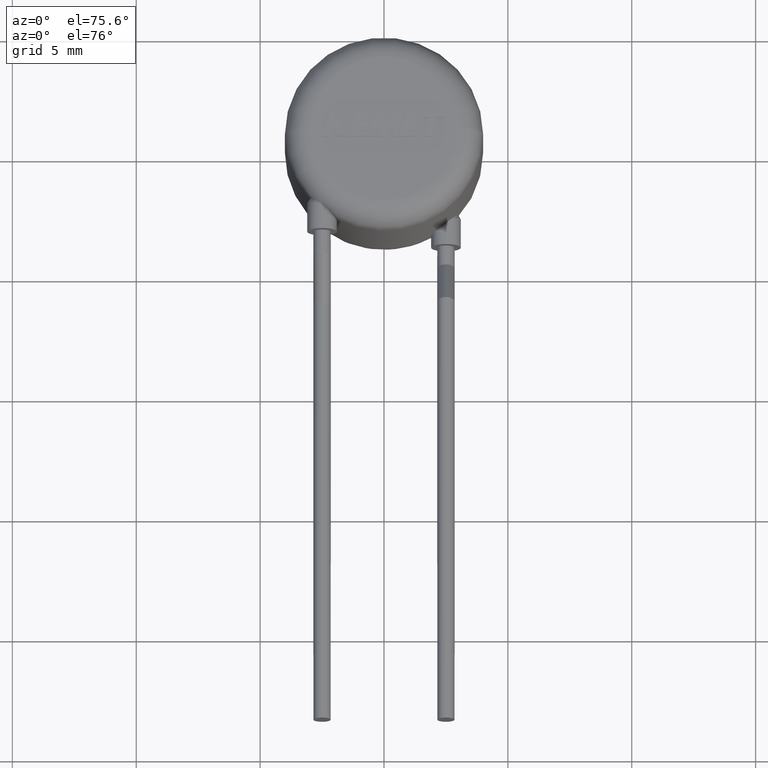
[diagram: clean part render]
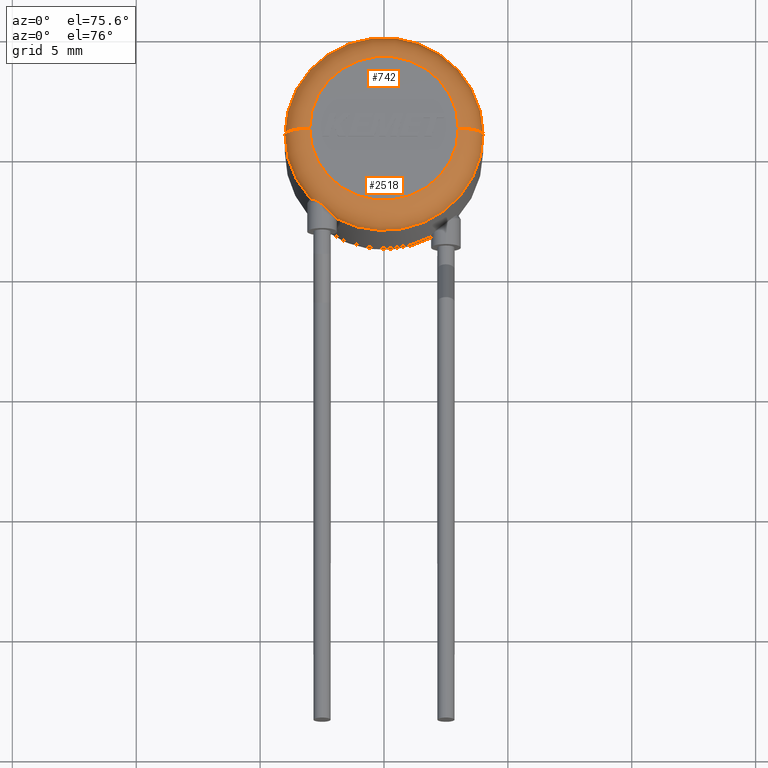
[diagram: same view with one multi-face feature highlighted, each face labeled with its STEP entity id]
A machine part, auxiliary view. The highlighted faces form ONE feature: a constant-radius fillet chain: 2 tangent blend faces with common blend radius 1 mm. The faces share edges in the B-rep.
Their STEP definitions:
[1] entity #2518 (Torus):
#25 = CARTESIAN_POINT ( 'NONE',  ( -2.527078140111358451, -2.992499789388508802, 4.399388667166896916 ) ) ;
#32 = VERTEX_POINT ( 'NONE', #2032 ) ;
#74 = DIRECTION ( 'NONE',  ( 0.000000000000000000, 0.000000000000000000, -1.000000000000000000 ) ) ;
#78 = CARTESIAN_POINT ( 'NONE',  ( 0.000000000000000000, 0.000000000000000000, 4.000000000000000000 ) ) ;
#98 = AXIS2_PLACEMENT_3D ( 'NONE', #78, #958, #3031 ) ;
#107 = CIRCLE ( 'NONE', #287, 1.000000000000000000 ) ;
#224 = CIRCLE ( 'NONE', #98, 4.000000000000000000 ) ;
#225 = CIRCLE ( 'NONE', #2133, 3.000000000000000000 ) ;
#248 = CARTESIAN_POINT ( 'NONE',  ( -2.717019160498452823, -2.852901837493643900, 4.352803223729541315 ) ) ;
#287 = AXIS2_PLACEMENT_3D ( 'NONE', #1619, #690, #74 ) ;
#290 = CARTESIAN_POINT ( 'NONE',  ( -4.000000000000000000, 0.000000000000000000, 4.000000000000000000 ) ) ;
#330 = CARTESIAN_POINT ( 'NONE',  ( -2.499999999999994671, -3.014811906893561044, 4.400000000000000355 ) ) ;
#381 = CARTESIAN_POINT ( 'NONE',  ( -3.000000000000000000, 3.673940397442059868E-16, 4.000000000000000000 ) ) ;
#470 = DIRECTION ( 'NONE',  ( 1.000000000000000000, 0.000000000000000000, 0.000000000000000000 ) ) ;
#483 = EDGE_CURVE ( 'NONE', #3106, #1262, #225, .T. ) ;
#489 = VERTEX_POINT ( 'NONE', #290 ) ;
#544 = CIRCLE ( 'NONE', #728, 4.000000000000000000 ) ;
#548 = VERTEX_POINT ( 'NONE', #2449 ) ;
#551 = VERTEX_POINT ( 'NONE', #2737 ) ;
#574 = FACE_OUTER_BOUND ( 'NONE', #1790, .T. ) ;
#629 = DIRECTION ( 'NONE',  ( 1.000000000000000000, 0.000000000000000000, 0.000000000000000000 ) ) ;
#640 = B_SPLINE_CURVE_WITH_KNOTS ( 'NONE', 3,
 ( #1755, #889, #3201, #248, #2633, #1435 ),
 .UNSPECIFIED., .F., .F.,
 ( 4, 2, 4 ),
 ( 2.101183750915074968E-07, 0.0003550189271266756923, 0.0007098277358782598091 ),
 .UNSPECIFIED. ) ;
#672 = TOROIDAL_SURFACE ( 'NONE', #2841, 3.000000000000000000, 1.000000000000000000 ) ;
#690 = DIRECTION ( 'NONE',  ( 0.000000000000000000, -1.000000000000000000, 0.000000000000000000 ) ) ;
#728 = AXIS2_PLACEMENT_3D ( 'NONE', #2466, #919, #629 ) ;
#889 = CARTESIAN_POINT ( 'NONE',  ( -2.940507723932025641, -2.712037098872684737, 4.112564265155002730 ) ) ;
#907 = CARTESIAN_POINT ( 'NONE',  ( -2.509027553551944845, -3.007325906248430325, 4.400000000000000355 ) ) ;
#919 = DIRECTION ( 'NONE',  ( -0.000000000000000000, -0.000000000000000000, -1.000000000000000000 ) ) ;
#938 = ORIENTED_EDGE ( 'NONE', *, *, #2244, .F. ) ;
#958 = DIRECTION ( 'NONE',  ( -0.000000000000000000, -0.000000000000000000, -1.000000000000000000 ) ) ;
#1134 = CARTESIAN_POINT ( 'NONE',  ( -2.078338075695280729, -3.387766412183667697, 4.231825303328415444 ) ) ;
#1169 = DIRECTION ( 'NONE',  ( 0.000000000000000000, 0.000000000000000000, 1.000000000000000000 ) ) ;
#1173 = EDGE_CURVE ( 'NONE', #548, #489, #224, .T. ) ;
#1219 = ORIENTED_EDGE ( 'NONE', *, *, #1173, .F. ) ;
#1259 = B_SPLINE_CURVE_WITH_KNOTS ( 'NONE', 3,
 ( #1992, #2898, #1440, #2620, #1134, #3842, #2307, #3501 ),
 .UNSPECIFIED., .F., .F.,
 ( 4, 2, 2, 4 ),
 ( 0.0002970482918024581792, 0.0007406443044126395647, 0.0009624423107177303930, 0.001184240317022821004 ),
 .UNSPECIFIED. ) ;
#1262 = VERTEX_POINT ( 'NONE', #3796 ) ;
#1296 = ORIENTED_EDGE ( 'NONE', *, *, #1765, .T. ) ;
#1378 = ORIENTED_EDGE ( 'NONE', *, *, #2199, .T. ) ;
#1421 = VERTEX_POINT ( 'NONE', #2576 ) ;
#1431 = ORIENTED_EDGE ( 'NONE', *, *, #3733, .F. ) ;
#1435 = CARTESIAN_POINT ( 'NONE',  ( -2.527078140111358451, -2.992499789388508802, 4.399388667166896916 ) ) ;
#1440 = CARTESIAN_POINT ( 'NONE',  ( -2.274436543625788509, -3.210265209407457743, 4.368342571789148643 ) ) ;
#1500 = CARTESIAN_POINT ( 'NONE',  ( 0.000000000000000000, 0.000000000000000000, 4.000000000000000000 ) ) ;
#1511 = DIRECTION ( 'NONE',  ( 1.000000000000000000, 0.000000000000000000, 0.000000000000000000 ) ) ;
#1584 = B_SPLINE_CURVE_WITH_KNOTS ( 'NONE', 3,
 ( #25, #3577, #907, #330 ),
 .UNSPECIFIED., .F., .F.,
 ( 4, 4 ),
 ( 0.0002622835256613002776, 0.0002970482918024581792 ),
 .UNSPECIFIED. ) ;
#1619 = CARTESIAN_POINT ( 'NONE',  ( 3.000000000000000000, 0.000000000000000000, 4.000000000000000000 ) ) ;
#1664 = CARTESIAN_POINT ( 'NONE',  ( -1.934314575050761764, -3.501203667989937873, 3.999999999999999112 ) ) ;
#1697 = EDGE_CURVE ( 'NONE', #1421, #1262, #107, .T. ) ;
#1755 = CARTESIAN_POINT ( 'NONE',  ( -2.968394557020705538, -2.681162761536466377, 4.000000000000000000 ) ) ;
#1765 = EDGE_CURVE ( 'NONE', #548, #32, #640, .T. ) ;
#1790 = EDGE_LOOP ( 'NONE', ( #1431, #1219, #1296, #3477, #1378, #938, #2404, #3227 ) ) ;
#1992 = CARTESIAN_POINT ( 'NONE',  ( -2.499999999999994671, -3.014811906893561044, 4.400000000000000355 ) ) ;
#2032 = CARTESIAN_POINT ( 'NONE',  ( -2.527078140111358451, -2.992499789388508802, 4.399388667166896916 ) ) ;
#2133 = AXIS2_PLACEMENT_3D ( 'NONE', #2962, #1169, #1511 ) ;
#2153 = EDGE_CURVE ( 'NONE', #32, #551, #1584, .T. ) ;
#2175 = DIRECTION ( 'NONE',  ( 1.224646799147353207E-16, 1.000000000000000000, -0.000000000000000000 ) ) ;
#2199 = EDGE_CURVE ( 'NONE', #551, #3246, #1259, .T. ) ;
#2244 = EDGE_CURVE ( 'NONE', #1421, #3246, #544, .T. ) ;
#2290 = CARTESIAN_POINT ( 'NONE',  ( -3.000000000000000000, 4.286263797015736595E-16, 5.000000000000000000 ) ) ;
#2307 = CARTESIAN_POINT ( 'NONE',  ( -1.959039132056454857, -3.487544059615437231, 4.069931607729101231 ) ) ;
#2335 = CIRCLE ( 'NONE', #2452, 1.000000000000000000 ) ;
#2404 = ORIENTED_EDGE ( 'NONE', *, *, #1697, .T. ) ;
#2449 = CARTESIAN_POINT ( 'NONE',  ( -2.968394557020705538, -2.681162761536466377, 4.000000000000000000 ) ) ;
#2452 = AXIS2_PLACEMENT_3D ( 'NONE', #381, #2175, #2765 ) ;
#2466 = CARTESIAN_POINT ( 'NONE',  ( 0.000000000000000000, 0.000000000000000000, 4.000000000000000000 ) ) ;
#2477 = DIRECTION ( 'NONE',  ( 0.000000000000000000, 0.000000000000000000, 1.000000000000000000 ) ) ;
#2518 = ADVANCED_FACE ( 'NONE', ( #574 ), #672, .T. ) ;
#2576 = CARTESIAN_POINT ( 'NONE',  ( 4.000000000000000000, 4.898587196589412829E-16, 4.000000000000000000 ) ) ;
#2620 = CARTESIAN_POINT ( 'NONE',  ( -2.125761128645033526, -3.344908790718627678, 4.272671455777486749 ) ) ;
#2633 = CARTESIAN_POINT ( 'NONE',  ( -2.618841413233221616, -2.918022369046867404, 4.394102833225137061 ) ) ;
#2737 = CARTESIAN_POINT ( 'NONE',  ( -2.499999999999994671, -3.014811906893561044, 4.400000000000000355 ) ) ;
#2765 = DIRECTION ( 'NONE',  ( -1.000000000000000000, 1.224646799147352961E-16, 0.000000000000000000 ) ) ;
#2841 = AXIS2_PLACEMENT_3D ( 'NONE', #1500, #2477, #470 ) ;
#2898 = CARTESIAN_POINT ( 'NONE',  ( -2.384809040768006483, -3.110332757604485465, 4.399999999999997691 ) ) ;
#2962 = CARTESIAN_POINT ( 'NONE',  ( 0.000000000000000000, 0.000000000000000000, 5.000000000000000000 ) ) ;
#3031 = DIRECTION ( 'NONE',  ( 1.000000000000000000, 1.776356839400250465E-15, 0.000000000000000000 ) ) ;
#3106 = VERTEX_POINT ( 'NONE', #2290 ) ;
#3201 = CARTESIAN_POINT ( 'NONE',  ( -2.878306807413743229, -2.750632553528877811, 4.211321216219925390 ) ) ;
#3227 = ORIENTED_EDGE ( 'NONE', *, *, #483, .F. ) ;
#3246 = VERTEX_POINT ( 'NONE', #1664 ) ;
#3477 = ORIENTED_EDGE ( 'NONE', *, *, #2153, .T. ) ;
#3501 = CARTESIAN_POINT ( 'NONE',  ( -1.934314575050761764, -3.501203667989937873, 3.999999999999999112 ) ) ;
#3577 = CARTESIAN_POINT ( 'NONE',  ( -2.518053496787102663, -2.999888366311728838, 4.399796366827899874 ) ) ;
#3733 = EDGE_CURVE ( 'NONE', #489, #3106, #2335, .T. ) ;
#3796 = CARTESIAN_POINT ( 'NONE',  ( 3.000000000000000000, 0.000000000000000000, 5.000000000000000000 ) ) ;
#3842 = CARTESIAN_POINT ( 'NONE',  ( -1.995251453810879427, -3.458857795145789282, 4.130909014871167351 ) ) ;
[2] entity #742 (Torus):
#6 = DIRECTION ( 'NONE',  ( -0.000000000000000000, -0.000000000000000000, -1.000000000000000000 ) ) ;
#74 = DIRECTION ( 'NONE',  ( 0.000000000000000000, 0.000000000000000000, -1.000000000000000000 ) ) ;
#107 = CIRCLE ( 'NONE', #287, 1.000000000000000000 ) ;
#155 = AXIS2_PLACEMENT_3D ( 'NONE', #1055, #2595, #3466 ) ;
#209 = CARTESIAN_POINT ( 'NONE',  ( 0.000000000000000000, 0.000000000000000000, 4.000000000000000000 ) ) ;
#287 = AXIS2_PLACEMENT_3D ( 'NONE', #1619, #690, #74 ) ;
#290 = CARTESIAN_POINT ( 'NONE',  ( -4.000000000000000000, 0.000000000000000000, 4.000000000000000000 ) ) ;
#381 = CARTESIAN_POINT ( 'NONE',  ( -3.000000000000000000, 3.673940397442059868E-16, 4.000000000000000000 ) ) ;
#394 = EDGE_CURVE ( 'NONE', #489, #1421, #2705, .T. ) ;
#489 = VERTEX_POINT ( 'NONE', #290 ) ;
#690 = DIRECTION ( 'NONE',  ( 0.000000000000000000, -1.000000000000000000, 0.000000000000000000 ) ) ;
#724 = CIRCLE ( 'NONE', #2523, 3.000000000000000000 ) ;
#742 = ADVANCED_FACE ( 'NONE', ( #2776 ), #1895, .T. ) ;
#860 = DIRECTION ( 'NONE',  ( 0.000000000000000000, 0.000000000000000000, 1.000000000000000000 ) ) ;
#1055 = CARTESIAN_POINT ( 'NONE',  ( 0.000000000000000000, 0.000000000000000000, 4.000000000000000000 ) ) ;
#1207 = ORIENTED_EDGE ( 'NONE', *, *, #394, .F. ) ;
#1262 = VERTEX_POINT ( 'NONE', #3796 ) ;
#1421 = VERTEX_POINT ( 'NONE', #2576 ) ;
#1619 = CARTESIAN_POINT ( 'NONE',  ( 3.000000000000000000, 0.000000000000000000, 4.000000000000000000 ) ) ;
#1697 = EDGE_CURVE ( 'NONE', #1421, #1262, #107, .T. ) ;
#1808 = ORIENTED_EDGE ( 'NONE', *, *, #3733, .T. ) ;
#1895 = TOROIDAL_SURFACE ( 'NONE', #155, 3.000000000000000000, 1.000000000000000000 ) ;
#1952 = AXIS2_PLACEMENT_3D ( 'NONE', #209, #6, #2567 ) ;
#2045 = DIRECTION ( 'NONE',  ( 1.000000000000000000, 0.000000000000000000, 0.000000000000000000 ) ) ;
#2175 = DIRECTION ( 'NONE',  ( 1.224646799147353207E-16, 1.000000000000000000, -0.000000000000000000 ) ) ;
#2201 = ORIENTED_EDGE ( 'NONE', *, *, #3540, .F. ) ;
#2290 = CARTESIAN_POINT ( 'NONE',  ( -3.000000000000000000, 4.286263797015736595E-16, 5.000000000000000000 ) ) ;
#2335 = CIRCLE ( 'NONE', #2452, 1.000000000000000000 ) ;
#2386 = ORIENTED_EDGE ( 'NONE', *, *, #1697, .F. ) ;
#2452 = AXIS2_PLACEMENT_3D ( 'NONE', #381, #2175, #2765 ) ;
#2523 = AXIS2_PLACEMENT_3D ( 'NONE', #3817, #860, #2045 ) ;
#2567 = DIRECTION ( 'NONE',  ( 1.000000000000000000, 0.000000000000000000, 0.000000000000000000 ) ) ;
#2576 = CARTESIAN_POINT ( 'NONE',  ( 4.000000000000000000, 4.898587196589412829E-16, 4.000000000000000000 ) ) ;
#2595 = DIRECTION ( 'NONE',  ( 0.000000000000000000, 0.000000000000000000, 1.000000000000000000 ) ) ;
#2705 = CIRCLE ( 'NONE', #1952, 4.000000000000000000 ) ;
#2765 = DIRECTION ( 'NONE',  ( -1.000000000000000000, 1.224646799147352961E-16, 0.000000000000000000 ) ) ;
#2776 = FACE_OUTER_BOUND ( 'NONE', #2934, .T. ) ;
#2934 = EDGE_LOOP ( 'NONE', ( #1207, #1808, #2201, #2386 ) ) ;
#3106 = VERTEX_POINT ( 'NONE', #2290 ) ;
#3466 = DIRECTION ( 'NONE',  ( 1.000000000000000000, 0.000000000000000000, 0.000000000000000000 ) ) ;
#3540 = EDGE_CURVE ( 'NONE', #1262, #3106, #724, .T. ) ;
#3733 = EDGE_CURVE ( 'NONE', #489, #3106, #2335, .T. ) ;
#3796 = CARTESIAN_POINT ( 'NONE',  ( 3.000000000000000000, 0.000000000000000000, 5.000000000000000000 ) ) ;
#3817 = CARTESIAN_POINT ( 'NONE',  ( 0.000000000000000000, 0.000000000000000000, 5.000000000000000000 ) ) ;